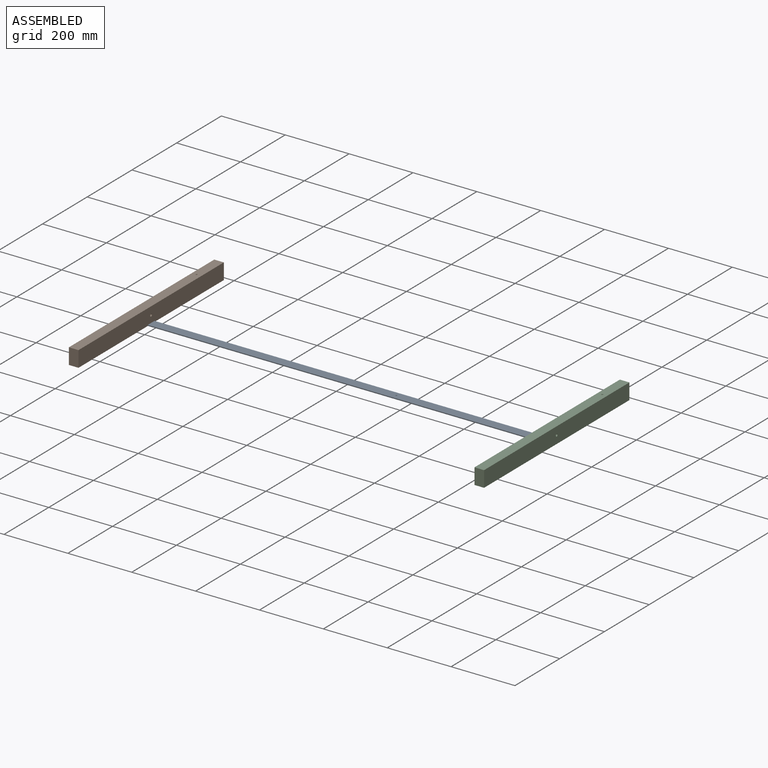
[diagram: assembled view]
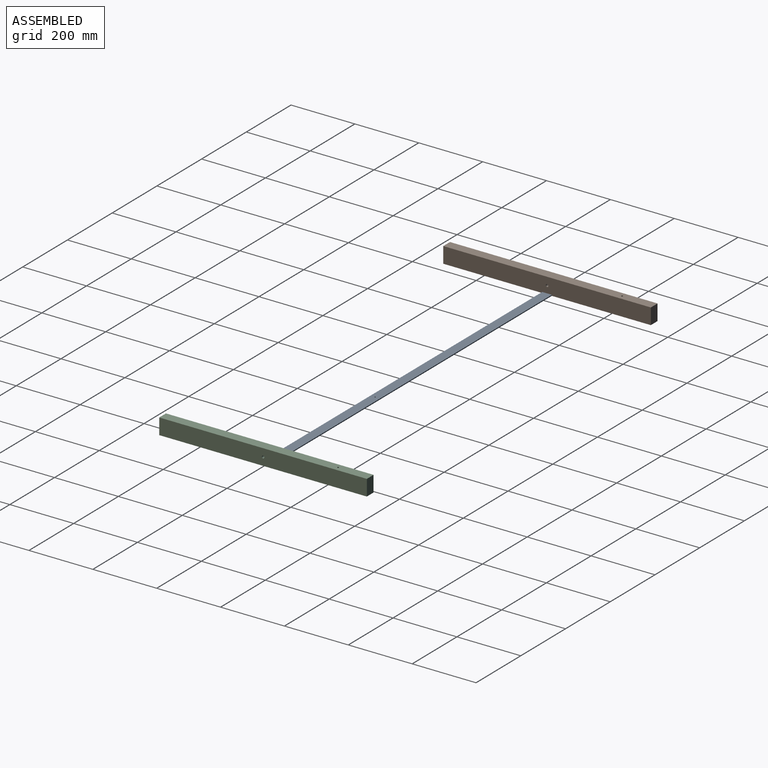
[diagram: assembled view, second angle]
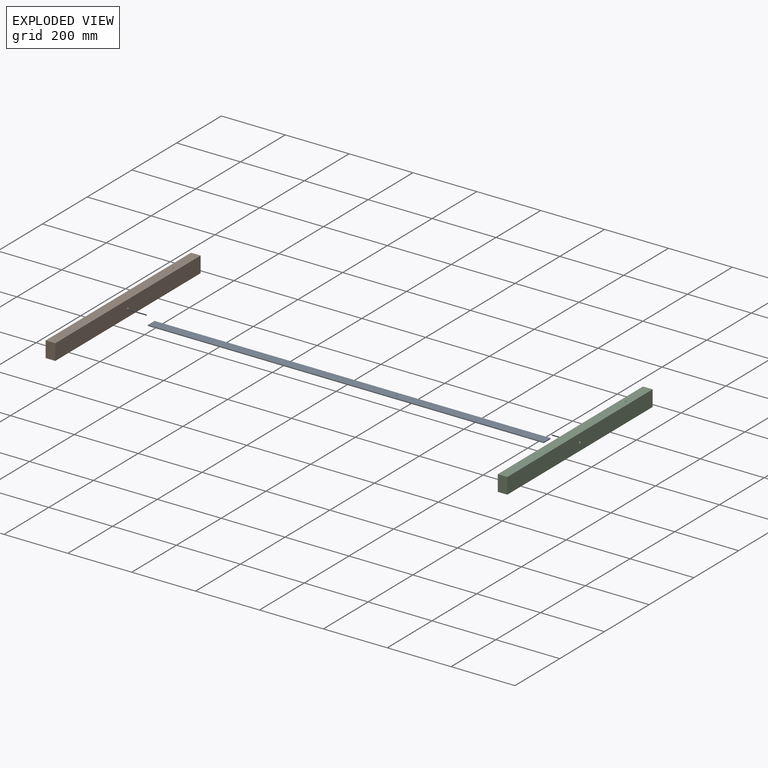
[diagram: exploded view]
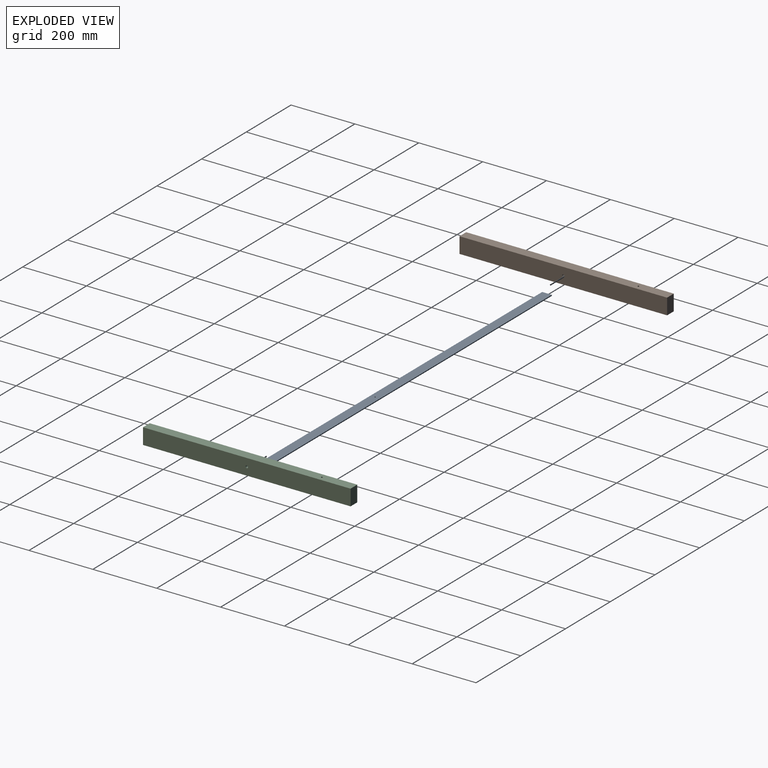
[diagram: exploded view, second angle]
ASSEMBLY  parts=3 mates=2
PART A: 7 faces, bbox 1240x3x30 mm
  f0: plane 1240x3mm, normal (0,0,1), area 3720mm2, adj f1,f4,f5,f6
  f1: plane 30x3mm, normal (-1,0,0), area 90mm2, adj f0,f2,f5,f6
  f2: plane 1240x3mm, normal (0,0,-1), area 3720mm2, adj f1,f4,f5,f6
  f3: cylinder r=2mm len=4mm, axis (0,1,0), area 37.7mm2, adj f5,f6
  f4: plane 30x3mm, normal (1,0,0), area 90mm2, adj f0,f2,f5,f6
  f5: plane 1240x30mm, normal (0,-1,0), area 37187.4mm2, adj f0,f1,f2,f3,f4
  f6: plane 1240x30mm, normal (0,1,0), area 37187.4mm2, adj f0,f1,f2,f3,f4
PART B: 10 faces, bbox 30x650x50 mm
  f0: plane 650x50mm, normal (-1,0,0), area 32449.7mm2, adj f1,f3,f4,f5,f7
  f1: plane 650x30mm, normal (0,0,-1), area 19460.7mm2, adj f0,f2,f4,f5,f6,f8
  f2: plane 650x50mm, normal (1,0,0), area 32449.7mm2, adj f1,f3,f4,f5,f7
  f3: plane 650x30mm, normal (0,0,1), area 19480.4mm2, adj f0,f2,f4,f5,f6
  f4: plane 50x30mm, normal (0,-1,0), area 1500mm2, adj f0,f1,f2,f3
  f5: plane 50x30mm, normal (0,1,0), area 1500mm2, adj f0,f1,f2,f3
  f6: cylinder r=2.5mm len=50mm, axis (0,0,1), area 785.4mm2, adj f1,f3
  f7: cylinder r=4mm len=30mm, axis (1,0,0), area 754mm2, adj f0,f2
  f8: cylinder r=2.5mm len=25mm, axis (0,0,1), area 392.7mm2, adj f1,f9
  f9: plane 5x5mm, normal (0,0,-1), area 19.6mm2, adj f8
PART C: same geometry as B
PLACE A rot(axis=(-1,0,0),90deg) t=(609.23,162.8,90.99)mm
PLACE B t=(-11.52,24.41,115.99)mm
PLACE C t=(1258.48,24.41,115.99)mm
MATE fastened C.f0 <-> A.f4  axis (-1,0,0) through (1243.48,24.41,90.99)mm
MATE fastened A.f1 <-> B.f2  axis (-1,0,0) through (3.48,24.41,90.99)mm
